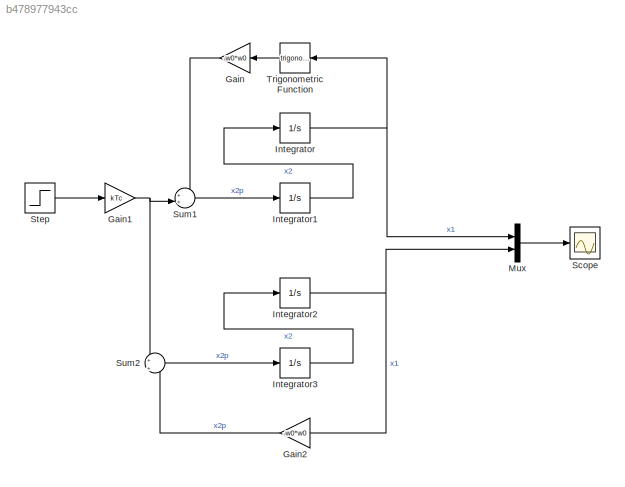
MODEL slx_b478977943cc
KIND model
CONFIG AbsTol = auto
CONFIG EnableMultiTasking = off
CONFIG FixedStep = auto
CONFIG MaxStep = auto
CONFIG MinStep = auto
CONFIG RelTol = 1e-3
CONFIG SampleTimeConstraint = Unconstrained
CONFIG SolverName = VariableStepAuto
CONFIG StartTime = 0.0
CONFIG StopTime = 10.0
BLOCK [Gain] Gain
  Gain = -w0*w0
  NameLocation = top
BLOCK [Gain] Gain1
  Gain = kTc
BLOCK [Gain] Gain2
  Gain = -w0*w0
  NameLocation = top
BLOCK [Integrator] Integrator
  Ports = [1, 1]
BLOCK [Integrator] Integrator1
  Ports = [1, 1]
BLOCK [Integrator] Integrator2
  Ports = [1, 1]
BLOCK [Integrator] Integrator3
  Ports = [1, 1]
BLOCK [Mux] Mux
  DisplayOption = bar
  Inputs = 2
  Ports = [2, 1]
BLOCK [Scope] Scope
  Floating = off
  NumInputPorts = 1
  Ports = [1]
  ScopeSpecificationString = Simulink.scopes.TimeScopeBlockCfg('CurrentConfiguration', extmgr.ConfigurationSet(extmgr.Configuration('Core','General UI',true),extmgr.Configuration('Core','Source UI',true),extmgr.Configuration('Sources','WiredSimulink',true),extmgr.Configuration('Visuals','Time Domain',true,'SerializedDisplays',{struct('MinYLimReal','-0.02557','MaxYLimReal','0.23013','YLabelReal','','MinYLimMag','0.00000','MaxY...<+1355ch>
BLOCK [Step] Step
  After = 5
  SampleTime = 0
BLOCK [Sum] Sum1
  Inputs = ++|
  Ports = [2, 1]
BLOCK [Sum] Sum2
  Inputs = +|+
  Ports = [2, 1]
BLOCK [Trigonometry] Trigonometric Function
  NameLocation = top
  Ports = [1, 1]
NET Gain1:1 -> Sum1:2, Sum2:1
LINE Gain2:1 -> Sum2:2
LINE Gain:1 -> Sum1:1
LINE Integrator1:1 -> Integrator:1
NET Integrator2:1 -> Gain2:1, Mux:2
LINE Integrator3:1 -> Integrator2:1
NET Integrator:1 -> Mux:1, Trigonometric Function:1
LINE Mux:1 -> Scope:1
LINE Step:1 -> Gain1:1
LINE Sum1:1 -> Integrator1:1
LINE Sum2:1 -> Integrator3:1
LINE Trigonometric Function:1 -> Gain:1
note: NET lines group one-source signal fan-out (src -> all destinations, sorted); 1:1 wires keep LINE
